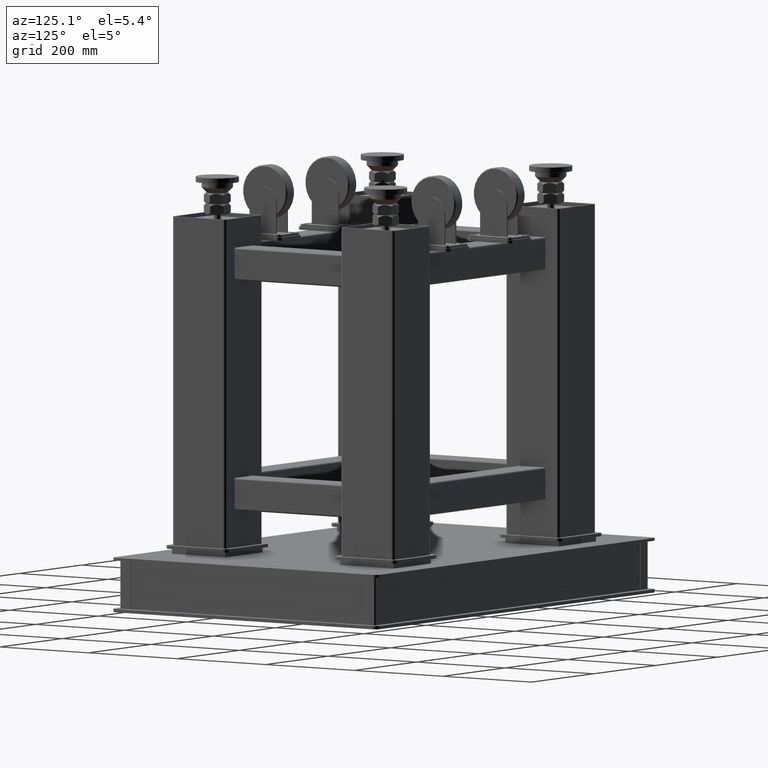
[diagram: clean part render]
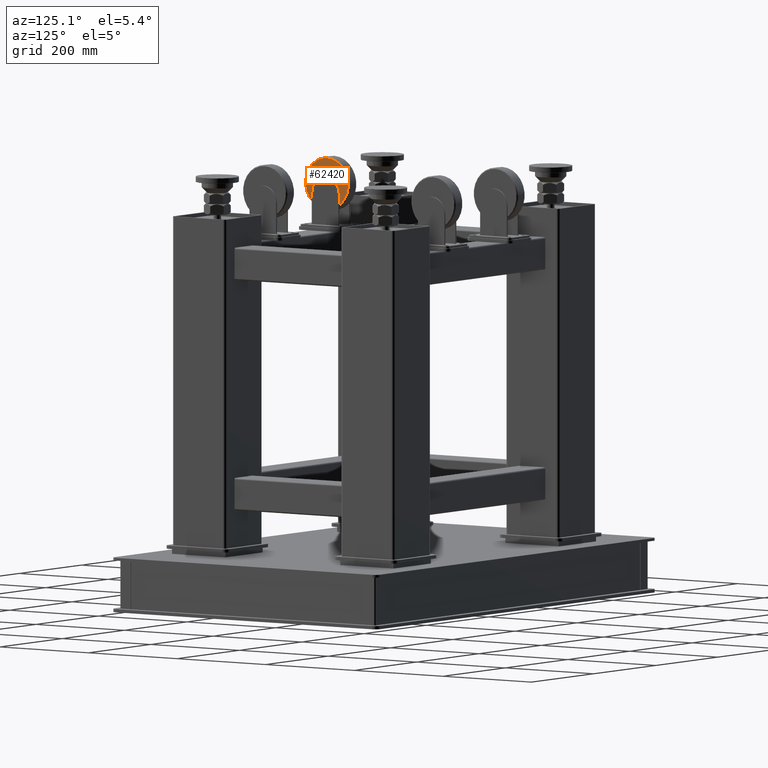
[diagram: same view with one face highlighted and labeled with its STEP entity id]
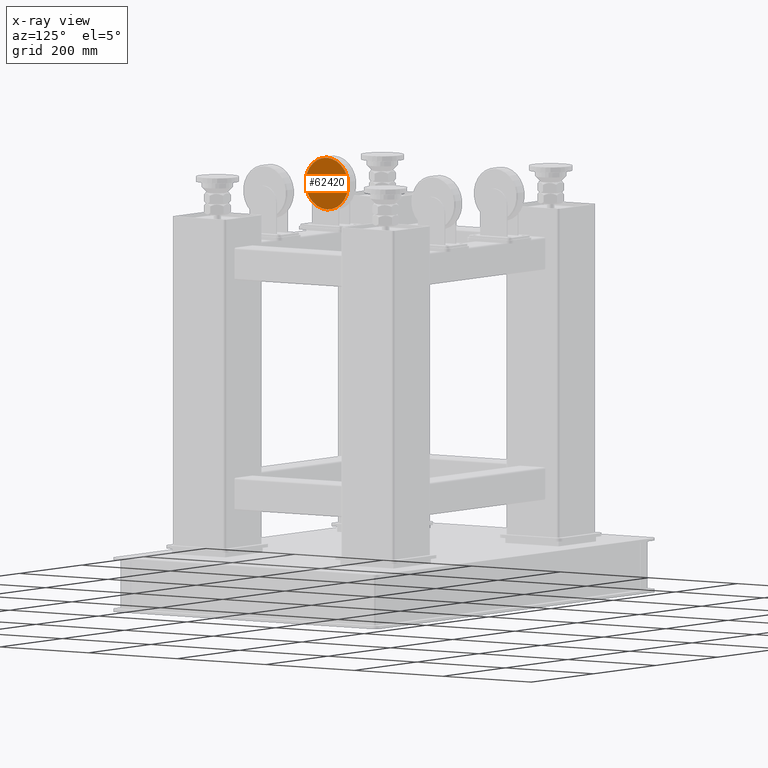
[diagram: x-ray of the same camera — body ghosted, the highlighted face saturated]
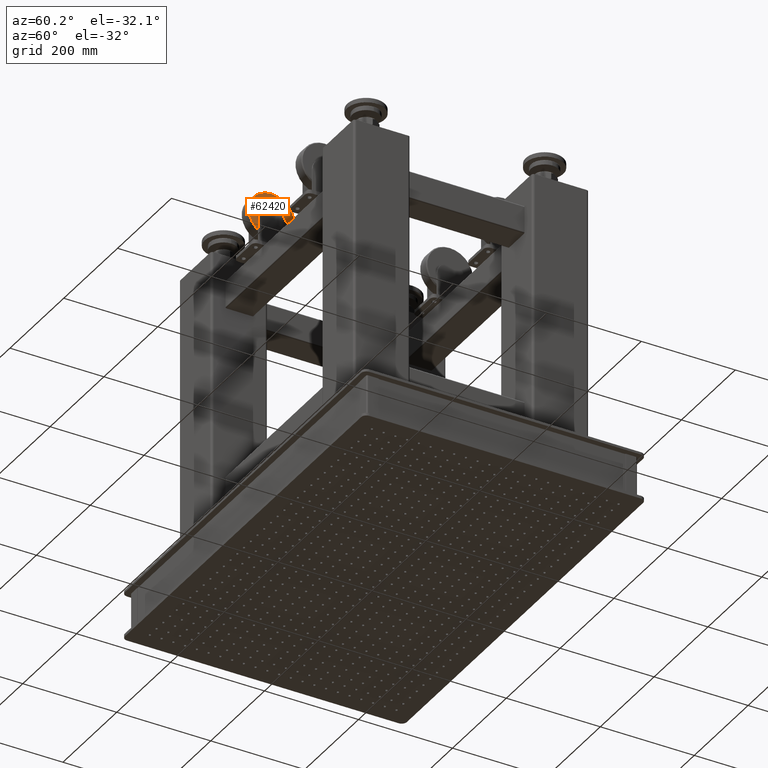
[diagram: same view with one face highlighted and labeled with its STEP entity id]
A machine part, auxiliary view. The second image highlights one B-rep face of the part: STEP entity #62420.
The next image is the same camera in x-ray: the body ghosted, the highlighted face saturated — about 0% of this face is hidden behind the body in this view.
A second angle (auxiliary view) of the same face is appended — the face is thin or edge-on in the first view.
In plain terms, the highlighted planar face has unit normal (1, 0, -0).
Its self-contained STEP definition (entity closure, byte-faithful):
#3473 = VERTEX_POINT ( 'NONE', #92475 ) ;
#3595 = CIRCLE ( 'NONE', #30171, 47.99999999999998579 ) ;
#11642 = DIRECTION ( 'NONE',  ( 0.000000000000000000, 0.000000000000000000, 1.000000000000000000 ) ) ;
#15756 = CIRCLE ( 'NONE', #21906, 47.99999999999998579 ) ;
#16509 = EDGE_CURVE ( 'NONE', #3473, #106844, #15756, .T. ) ;
#21906 = AXIS2_PLACEMENT_3D ( 'NONE', #34856, #112554, #62864 ) ;
#30171 = AXIS2_PLACEMENT_3D ( 'NONE', #58349, #79231, #11642 ) ;
#31351 = DIRECTION ( 'NONE',  ( 0.000000000000000000, 0.000000000000000000, 1.000000000000000000 ) ) ;
#34856 = CARTESIAN_POINT ( 'NONE',  ( -839.3579775280899185, 7.982634884769357342, 296.5000000000000000 ) ) ;
#44190 = ORIENTED_EDGE ( 'NONE', *, *, #16509, .T. ) ;
#46180 = CARTESIAN_POINT ( 'NONE',  ( -839.3579775280899185, 7.982634884769357342, 248.5000000000000568 ) ) ;
#48659 = CARTESIAN_POINT ( 'NONE',  ( -839.3579775280899185, 7.982634884769357342, 296.5000000000000000 ) ) ;
#58229 = DIRECTION ( 'NONE',  ( 1.000000000000000000, 0.000000000000000000, -0.000000000000000000 ) ) ;
#58349 = CARTESIAN_POINT ( 'NONE',  ( -839.3579775280899185, 7.982634884769357342, 296.5000000000000000 ) ) ;
#62420 = ADVANCED_FACE ( 'NONE', ( #107900 ), #118690, .T. ) ;
#62864 = DIRECTION ( 'NONE',  ( 0.000000000000000000, 0.000000000000000000, 1.000000000000000000 ) ) ;
#79231 = DIRECTION ( 'NONE',  ( 1.000000000000000000, 0.000000000000000000, 0.000000000000000000 ) ) ;
#83436 = EDGE_LOOP ( 'NONE', ( #85031, #44190 ) ) ;
#85031 = ORIENTED_EDGE ( 'NONE', *, *, #92813, .T. ) ;
#92475 = CARTESIAN_POINT ( 'NONE',  ( -839.3579775280899185, 7.982634884769357342, 344.5000000000000000 ) ) ;
#92813 = EDGE_CURVE ( 'NONE', #106844, #3473, #3595, .T. ) ;
#106844 = VERTEX_POINT ( 'NONE', #46180 ) ;
#106889 = AXIS2_PLACEMENT_3D ( 'NONE', #48659, #58229, #31351 ) ;
#107900 = FACE_OUTER_BOUND ( 'NONE', #83436, .T. ) ;
#112554 = DIRECTION ( 'NONE',  ( 1.000000000000000000, 0.000000000000000000, 0.000000000000000000 ) ) ;
#118690 = PLANE ( 'NONE',  #106889 ) ;